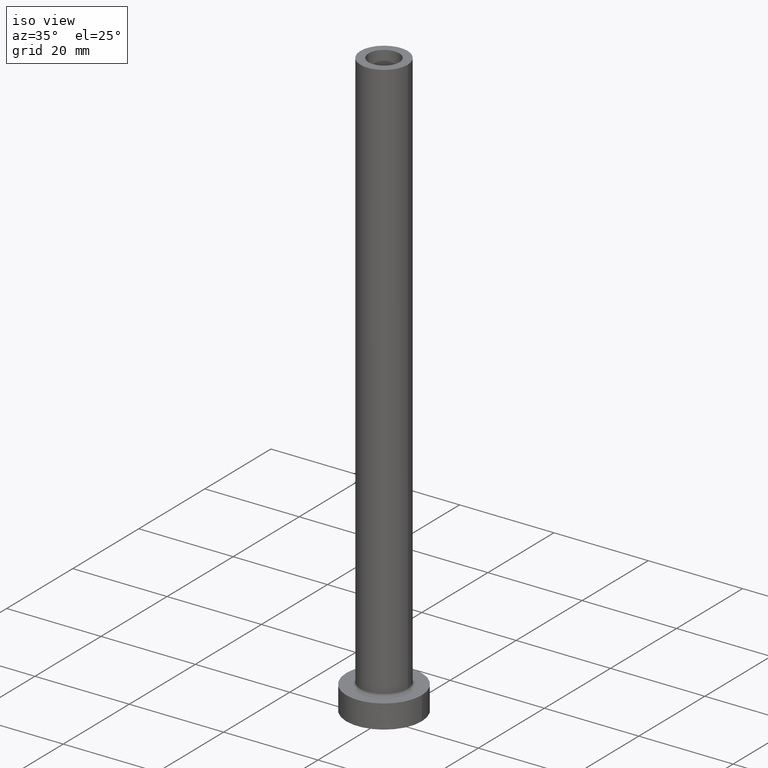
[diagram: clean part render]
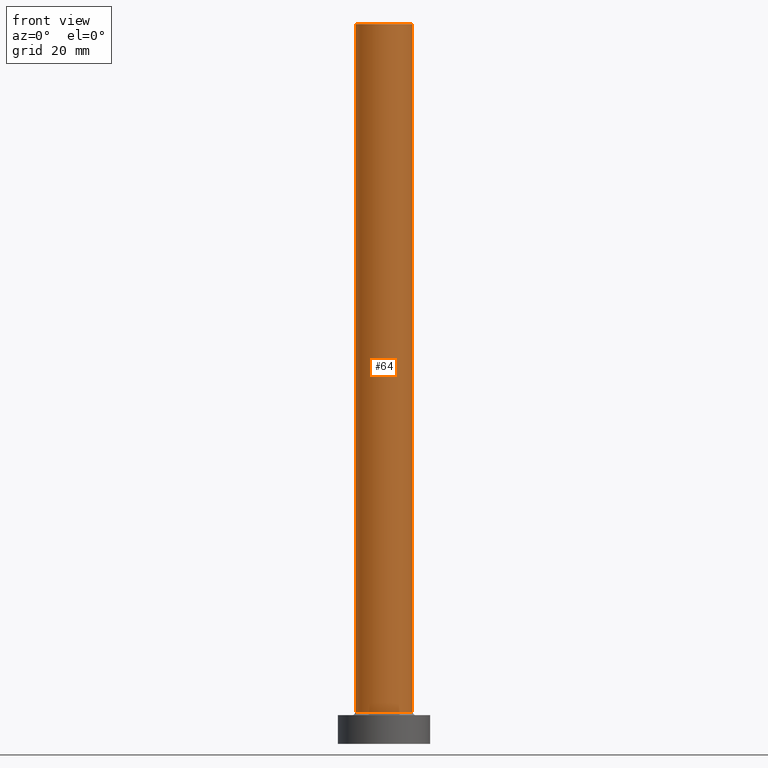
[diagram: tour spotlight — one face highlighted and labeled with its STEP entity id]
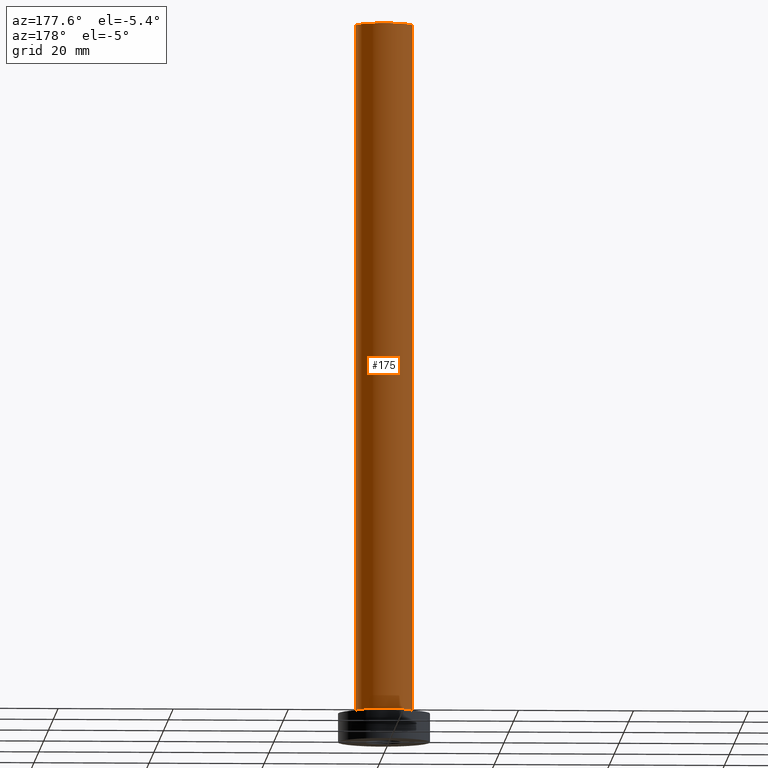
[diagram: tour spotlight — one face highlighted and labeled with its STEP entity id]
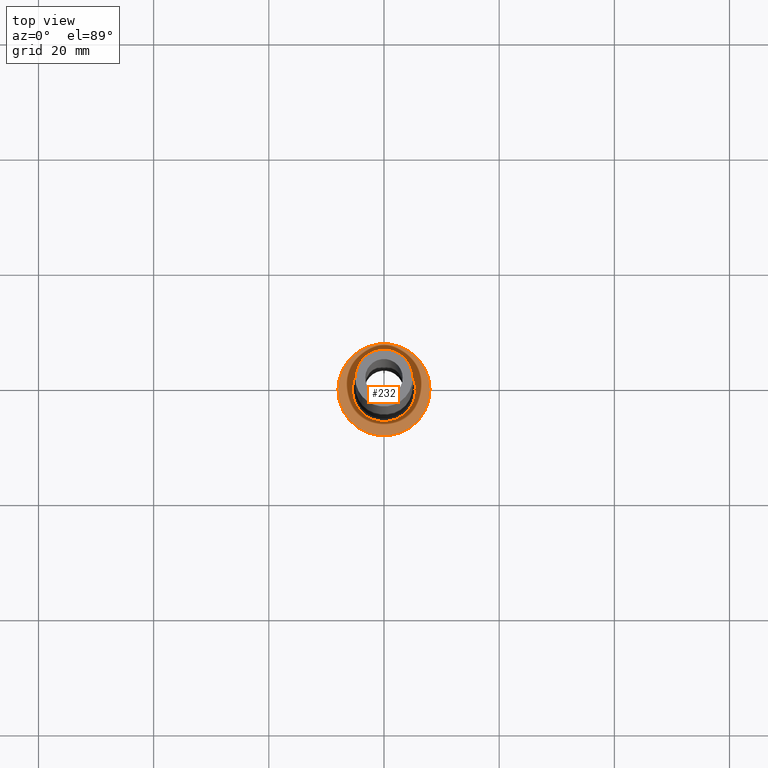
[diagram: tour spotlight — one face highlighted and labeled with its STEP entity id]
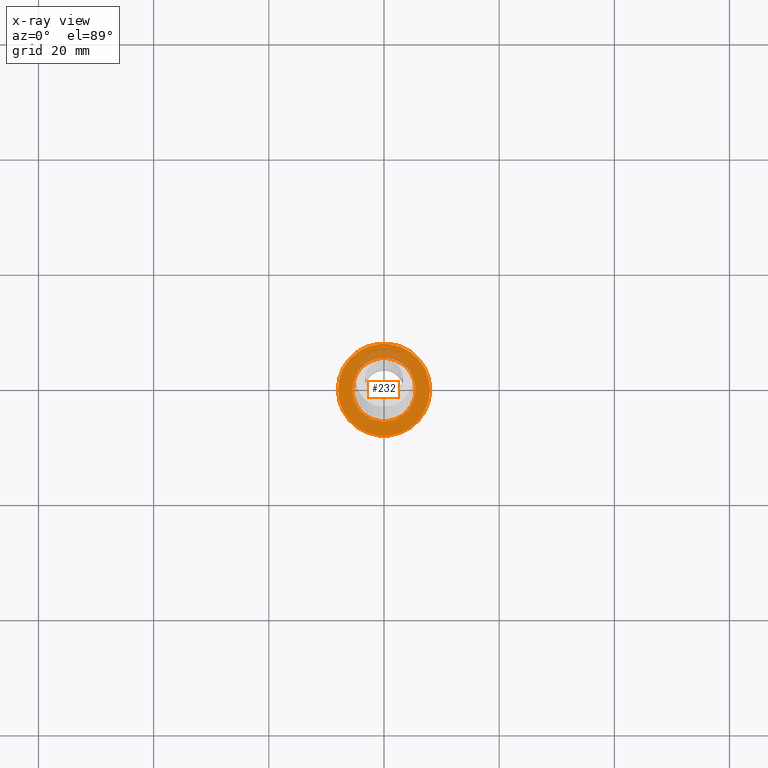
[diagram: x-ray of the same camera — body ghosted, this tour face saturated]
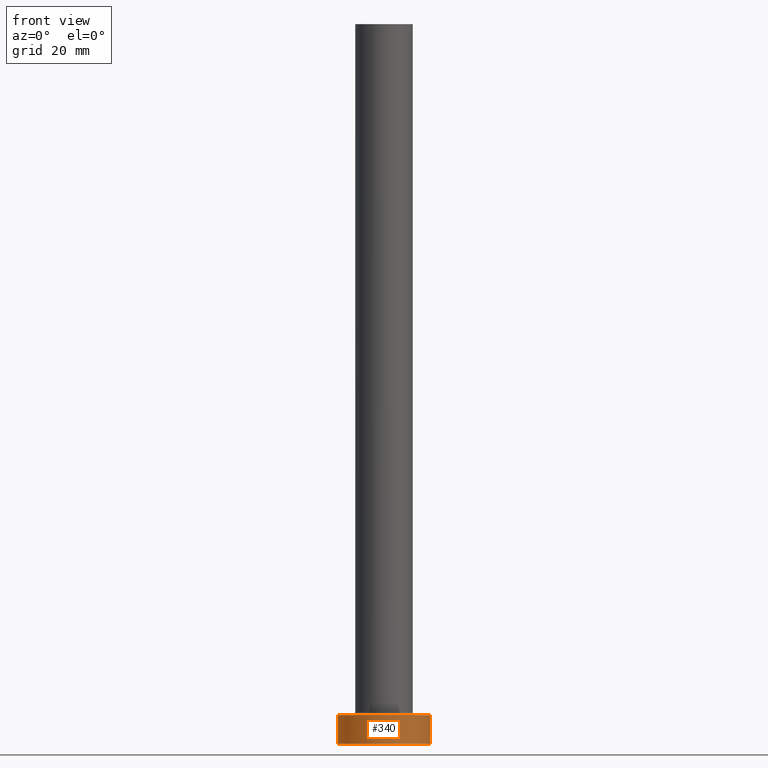
[diagram: tour spotlight — one face highlighted and labeled with its STEP entity id]
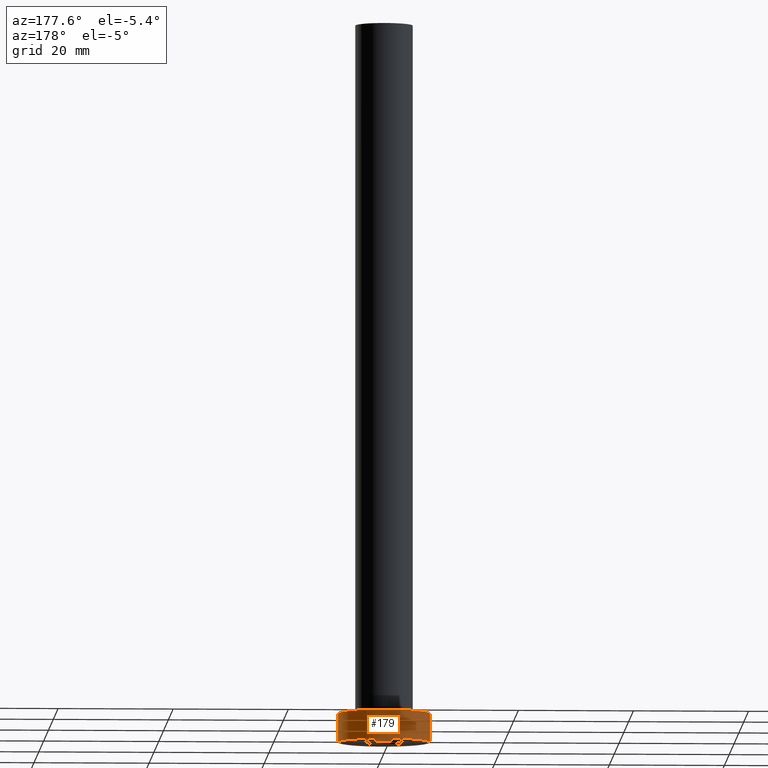
[diagram: tour spotlight — one face highlighted and labeled with its STEP entity id]
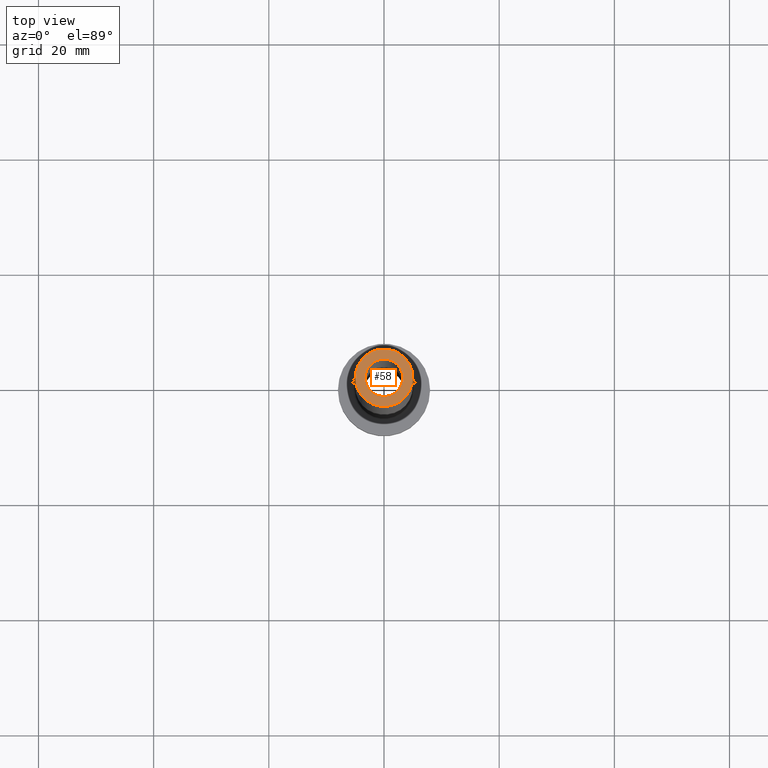
[diagram: tour spotlight — one face highlighted and labeled with its STEP entity id]
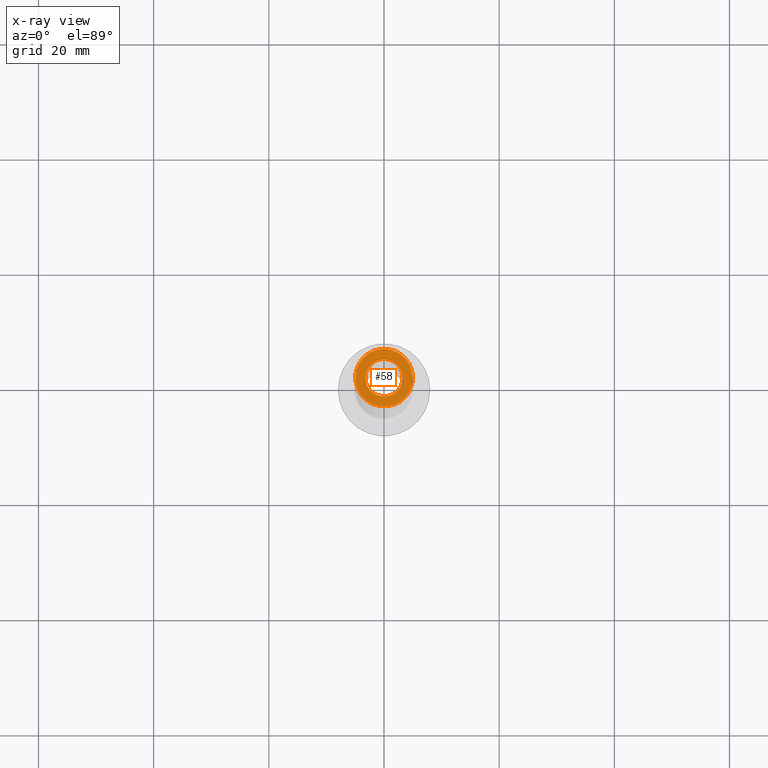
[diagram: x-ray of the same camera — body ghosted, this tour face saturated]
A machine part: a face-by-face anatomy tour. The part has 14 B-rep faces; the first image is the clean iso view, then the 6 largest visible faces are spotlighted one at a time (largest first), each with its STEP entity span.

Face 1 — front view, entity #64. In plain terms, the highlighted cylindrical surface (edge-blend (fillet) strip) has radius 5 mm, axis along (-0, -0, -1).
Definition (entity closure, byte-faithful):
#8 = DIRECTION ( 'NONE',  ( -0.000000000000000000, -0.000000000000000000, -1.000000000000000000 ) ) ;
#27 = VECTOR ( 'NONE', #8, 1000.000000000000000 ) ;
#37 = ORIENTED_EDGE ( 'NONE', *, *, #392, .T. ) ;
#64 = ADVANCED_FACE ( 'NONE', ( #229 ), #333, .T. ) ;
#85 = DIRECTION ( 'NONE',  ( -0.000000000000000000, -0.000000000000000000, -1.000000000000000000 ) ) ;
#118 = AXIS2_PLACEMENT_3D ( 'NONE', #198, #253, #308 ) ;
#122 = CARTESIAN_POINT ( 'NONE',  ( 5.000000000000000000, 6.123233995736766282E-16, 125.0000000000000000 ) ) ;
#167 = EDGE_CURVE ( 'NONE', #182, #314, #377, .T. ) ;
#168 = VERTEX_POINT ( 'NONE', #268 ) ;
#180 = CARTESIAN_POINT ( 'NONE',  ( 0.000000000000000000, 0.000000000000000000, 125.0000000000000000 ) ) ;
#182 = VERTEX_POINT ( 'NONE', #341 ) ;
#198 = CARTESIAN_POINT ( 'NONE',  ( 0.000000000000000000, 0.000000000000000000, 5.500000000000005329 ) ) ;
#229 = FACE_OUTER_BOUND ( 'NONE', #402, .T. ) ;
#251 = DIRECTION ( 'NONE',  ( 1.000000000000000000, 0.000000000000000000, 0.000000000000000000 ) ) ;
#253 = DIRECTION ( 'NONE',  ( 0.000000000000000000, 0.000000000000000000, 1.000000000000000000 ) ) ;
#256 = CIRCLE ( 'NONE', #118, 5.000000000000000000 ) ;
#261 = DIRECTION ( 'NONE',  ( -1.000000000000000000, 0.000000000000000000, 0.000000000000000000 ) ) ;
#268 = CARTESIAN_POINT ( 'NONE',  ( 5.000000000000000000, 6.123233995736766282E-16, 5.500000000000005329 ) ) ;
#274 = AXIS2_PLACEMENT_3D ( 'NONE', #180, #437, #251 ) ;
#276 = EDGE_CURVE ( 'NONE', #182, #280, #360, .T. ) ;
#280 = VERTEX_POINT ( 'NONE', #290 ) ;
#286 = CARTESIAN_POINT ( 'NONE',  ( -5.000000000000000000, 0.000000000000000000, 5.500000000000005329 ) ) ;
#290 = CARTESIAN_POINT ( 'NONE',  ( 5.000000000000000000, 6.123233995736766282E-16, 125.0000000000000000 ) ) ;
#301 = VECTOR ( 'NONE', #85, 1000.000000000000000 ) ;
#308 = DIRECTION ( 'NONE',  ( 1.000000000000000000, 0.000000000000000000, 0.000000000000000000 ) ) ;
#309 = CARTESIAN_POINT ( 'NONE',  ( -5.000000000000000000, 0.000000000000000000, 125.0000000000000000 ) ) ;
#314 = VERTEX_POINT ( 'NONE', #286 ) ;
#333 = CYLINDRICAL_SURFACE ( 'NONE', #399, 5.000000000000000000 ) ;
#341 = CARTESIAN_POINT ( 'NONE',  ( -5.000000000000000000, 0.000000000000000000, 125.0000000000000000 ) ) ;
#348 = ORIENTED_EDGE ( 'NONE', *, *, #167, .T. ) ;
#350 = EDGE_CURVE ( 'NONE', #280, #168, #414, .T. ) ;
#360 = CIRCLE ( 'NONE', #274, 5.000000000000000000 ) ;
#371 = ORIENTED_EDGE ( 'NONE', *, *, #350, .F. ) ;
#377 = LINE ( 'NONE', #309, #301 ) ;
#381 = DIRECTION ( 'NONE',  ( -0.000000000000000000, -0.000000000000000000, -1.000000000000000000 ) ) ;
#384 = CARTESIAN_POINT ( 'NONE',  ( 0.000000000000000000, 0.000000000000000000, 125.0000000000000000 ) ) ;
#392 = EDGE_CURVE ( 'NONE', #314, #168, #256, .T. ) ;
#399 = AXIS2_PLACEMENT_3D ( 'NONE', #384, #381, #261 ) ;
#402 = EDGE_LOOP ( 'NONE', ( #371, #433, #348, #37 ) ) ;
#414 = LINE ( 'NONE', #122, #27 ) ;
#433 = ORIENTED_EDGE ( 'NONE', *, *, #276, .F. ) ;
#437 = DIRECTION ( 'NONE',  ( 0.000000000000000000, 0.000000000000000000, 1.000000000000000000 ) ) ;

Face 2 — auxiliary view, entity #175. In plain terms, the highlighted cylindrical surface (edge-blend (fillet) strip) has radius 5 mm, axis along (-0, -0, -1).
Definition (entity closure, byte-faithful):
#2 = ORIENTED_EDGE ( 'NONE', *, *, #31, .F. ) ;
#3 = DIRECTION ( 'NONE',  ( 1.000000000000000000, 0.000000000000000000, 0.000000000000000000 ) ) ;
#5 = ORIENTED_EDGE ( 'NONE', *, *, #167, .F. ) ;
#8 = DIRECTION ( 'NONE',  ( -0.000000000000000000, -0.000000000000000000, -1.000000000000000000 ) ) ;
#9 = FACE_OUTER_BOUND ( 'NONE', #137, .T. ) ;
#27 = VECTOR ( 'NONE', #8, 1000.000000000000000 ) ;
#31 = EDGE_CURVE ( 'NONE', #280, #182, #247, .T. ) ;
#85 = DIRECTION ( 'NONE',  ( -0.000000000000000000, -0.000000000000000000, -1.000000000000000000 ) ) ;
#90 = CYLINDRICAL_SURFACE ( 'NONE', #230, 5.000000000000000000 ) ;
#122 = CARTESIAN_POINT ( 'NONE',  ( 5.000000000000000000, 6.123233995736766282E-16, 125.0000000000000000 ) ) ;
#124 = AXIS2_PLACEMENT_3D ( 'NONE', #436, #323, #3 ) ;
#137 = EDGE_LOOP ( 'NONE', ( #2, #145, #248, #5 ) ) ;
#145 = ORIENTED_EDGE ( 'NONE', *, *, #350, .T. ) ;
#154 = CARTESIAN_POINT ( 'NONE',  ( 0.000000000000000000, 0.000000000000000000, 125.0000000000000000 ) ) ;
#156 = DIRECTION ( 'NONE',  ( -1.000000000000000000, 0.000000000000000000, 0.000000000000000000 ) ) ;
#167 = EDGE_CURVE ( 'NONE', #182, #314, #377, .T. ) ;
#168 = VERTEX_POINT ( 'NONE', #268 ) ;
#175 = ADVANCED_FACE ( 'NONE', ( #9 ), #90, .T. ) ;
#182 = VERTEX_POINT ( 'NONE', #341 ) ;
#230 = AXIS2_PLACEMENT_3D ( 'NONE', #154, #307, #156 ) ;
#247 = CIRCLE ( 'NONE', #124, 5.000000000000000000 ) ;
#248 = ORIENTED_EDGE ( 'NONE', *, *, #365, .T. ) ;
#263 = CARTESIAN_POINT ( 'NONE',  ( 0.000000000000000000, 0.000000000000000000, 5.500000000000005329 ) ) ;
#268 = CARTESIAN_POINT ( 'NONE',  ( 5.000000000000000000, 6.123233995736766282E-16, 5.500000000000005329 ) ) ;
#280 = VERTEX_POINT ( 'NONE', #290 ) ;
#286 = CARTESIAN_POINT ( 'NONE',  ( -5.000000000000000000, 0.000000000000000000, 5.500000000000005329 ) ) ;
#290 = CARTESIAN_POINT ( 'NONE',  ( 5.000000000000000000, 6.123233995736766282E-16, 125.0000000000000000 ) ) ;
#301 = VECTOR ( 'NONE', #85, 1000.000000000000000 ) ;
#307 = DIRECTION ( 'NONE',  ( -0.000000000000000000, -0.000000000000000000, -1.000000000000000000 ) ) ;
#309 = CARTESIAN_POINT ( 'NONE',  ( -5.000000000000000000, 0.000000000000000000, 125.0000000000000000 ) ) ;
#314 = VERTEX_POINT ( 'NONE', #286 ) ;
#320 = CIRCLE ( 'NONE', #389, 5.000000000000000000 ) ;
#323 = DIRECTION ( 'NONE',  ( 0.000000000000000000, 0.000000000000000000, 1.000000000000000000 ) ) ;
#341 = CARTESIAN_POINT ( 'NONE',  ( -5.000000000000000000, 0.000000000000000000, 125.0000000000000000 ) ) ;
#350 = EDGE_CURVE ( 'NONE', #280, #168, #414, .T. ) ;
#365 = EDGE_CURVE ( 'NONE', #168, #314, #320, .T. ) ;
#375 = DIRECTION ( 'NONE',  ( 1.000000000000000000, 0.000000000000000000, 0.000000000000000000 ) ) ;
#377 = LINE ( 'NONE', #309, #301 ) ;
#389 = AXIS2_PLACEMENT_3D ( 'NONE', #263, #441, #375 ) ;
#414 = LINE ( 'NONE', #122, #27 ) ;
#436 = CARTESIAN_POINT ( 'NONE',  ( 0.000000000000000000, 0.000000000000000000, 125.0000000000000000 ) ) ;
#441 = DIRECTION ( 'NONE',  ( 0.000000000000000000, 0.000000000000000000, 1.000000000000000000 ) ) ;

Face 3 — top view, entity #232. An x-ray twin of the same camera follows (body ghosted, this face saturated) — the face is partly hidden behind the body. In plain terms, the highlighted planar face has unit normal (0, 0, 1).
Definition (entity closure, byte-faithful):
#6 = VERTEX_POINT ( 'NONE', #366 ) ;
#54 = CIRCLE ( 'NONE', #202, 5.500000000000000000 ) ;
#56 = CARTESIAN_POINT ( 'NONE',  ( 0.000000000000000000, 0.000000000000000000, 5.000000000000000000 ) ) ;
#92 = CIRCLE ( 'NONE', #310, 5.500000000000000000 ) ;
#95 = CARTESIAN_POINT ( 'NONE',  ( 0.000000000000000000, 0.000000000000000000, 5.000000000000000000 ) ) ;
#112 = VERTEX_POINT ( 'NONE', #304 ) ;
#127 = CIRCLE ( 'NONE', #345, 8.000000000000000000 ) ;
#141 = AXIS2_PLACEMENT_3D ( 'NONE', #56, #205, #331 ) ;
#146 = EDGE_CURVE ( 'NONE', #328, #6, #92, .T. ) ;
#184 = CARTESIAN_POINT ( 'NONE',  ( 0.000000000000000000, 0.000000000000000000, 5.000000000000000000 ) ) ;
#188 = DIRECTION ( 'NONE',  ( -0.000000000000000000, -0.000000000000000000, -1.000000000000000000 ) ) ;
#202 = AXIS2_PLACEMENT_3D ( 'NONE', #361, #188, #434 ) ;
#205 = DIRECTION ( 'NONE',  ( 0.000000000000000000, 0.000000000000000000, 1.000000000000000000 ) ) ;
#215 = EDGE_LOOP ( 'NONE', ( #355, #289 ) ) ;
#220 = DIRECTION ( 'NONE',  ( 0.000000000000000000, 0.000000000000000000, 1.000000000000000000 ) ) ;
#227 = DIRECTION ( 'NONE',  ( 1.000000000000000000, 0.000000000000000000, 0.000000000000000000 ) ) ;
#232 = ADVANCED_FACE ( 'NONE', ( #318, #358 ), #293, .T. ) ;
#249 = DIRECTION ( 'NONE',  ( 1.000000000000000000, 0.000000000000000000, -0.000000000000000000 ) ) ;
#252 = VERTEX_POINT ( 'NONE', #401 ) ;
#258 = CARTESIAN_POINT ( 'NONE',  ( 0.000000000000000000, 0.000000000000000000, 5.000000000000000000 ) ) ;
#279 = EDGE_CURVE ( 'NONE', #6, #328, #54, .T. ) ;
#289 = ORIENTED_EDGE ( 'NONE', *, *, #364, .T. ) ;
#293 = PLANE ( 'NONE',  #315 ) ;
#304 = CARTESIAN_POINT ( 'NONE',  ( -8.000000000000000000, 0.000000000000000000, 5.000000000000000000 ) ) ;
#310 = AXIS2_PLACEMENT_3D ( 'NONE', #95, #336, #339 ) ;
#315 = AXIS2_PLACEMENT_3D ( 'NONE', #184, #220, #249 ) ;
#318 = FACE_BOUND ( 'NONE', #398, .T. ) ;
#328 = VERTEX_POINT ( 'NONE', #397 ) ;
#331 = DIRECTION ( 'NONE',  ( 1.000000000000000000, 0.000000000000000000, 0.000000000000000000 ) ) ;
#336 = DIRECTION ( 'NONE',  ( -0.000000000000000000, -0.000000000000000000, -1.000000000000000000 ) ) ;
#339 = DIRECTION ( 'NONE',  ( 1.000000000000000000, 0.000000000000000000, 0.000000000000000000 ) ) ;
#345 = AXIS2_PLACEMENT_3D ( 'NONE', #258, #443, #227 ) ;
#353 = CIRCLE ( 'NONE', #141, 8.000000000000000000 ) ;
#355 = ORIENTED_EDGE ( 'NONE', *, *, #403, .T. ) ;
#358 = FACE_OUTER_BOUND ( 'NONE', #215, .T. ) ;
#361 = CARTESIAN_POINT ( 'NONE',  ( 0.000000000000000000, 0.000000000000000000, 5.000000000000000000 ) ) ;
#364 = EDGE_CURVE ( 'NONE', #252, #112, #127, .T. ) ;
#366 = CARTESIAN_POINT ( 'NONE',  ( 5.500000000000000000, 0.000000000000000000, 5.000000000000002665 ) ) ;
#396 = ORIENTED_EDGE ( 'NONE', *, *, #279, .T. ) ;
#397 = CARTESIAN_POINT ( 'NONE',  ( -5.500000000000000000, 6.735557395310442023E-16, 5.000000000000002665 ) ) ;
#398 = EDGE_LOOP ( 'NONE', ( #396, #427 ) ) ;
#401 = CARTESIAN_POINT ( 'NONE',  ( 8.000000000000000000, 9.797174393178825657E-16, 5.000000000000000000 ) ) ;
#403 = EDGE_CURVE ( 'NONE', #112, #252, #353, .T. ) ;
#427 = ORIENTED_EDGE ( 'NONE', *, *, #146, .T. ) ;
#434 = DIRECTION ( 'NONE',  ( 1.000000000000000000, 0.000000000000000000, 0.000000000000000000 ) ) ;
#443 = DIRECTION ( 'NONE',  ( 0.000000000000000000, 0.000000000000000000, 1.000000000000000000 ) ) ;

Face 4 — front view, entity #340. In plain terms, the highlighted cylindrical surface (partial cylindrical patch) has radius 8 mm, axis along (-0, -0, -1).
Definition (entity closure, byte-faithful):
#1 = CYLINDRICAL_SURFACE ( 'NONE', #311, 8.000000000000000000 ) ;
#12 = DIRECTION ( 'NONE',  ( 0.000000000000000000, 0.000000000000000000, 1.000000000000000000 ) ) ;
#16 = LINE ( 'NONE', #300, #65 ) ;
#19 = DIRECTION ( 'NONE',  ( -0.000000000000000000, -0.000000000000000000, -1.000000000000000000 ) ) ;
#36 = FACE_OUTER_BOUND ( 'NONE', #140, .T. ) ;
#52 = CARTESIAN_POINT ( 'NONE',  ( 8.000000000000000000, 9.797174393178825657E-16, 0.000000000000000000 ) ) ;
#53 = DIRECTION ( 'NONE',  ( -0.000000000000000000, -0.000000000000000000, -1.000000000000000000 ) ) ;
#56 = CARTESIAN_POINT ( 'NONE',  ( 0.000000000000000000, 0.000000000000000000, 5.000000000000000000 ) ) ;
#65 = VECTOR ( 'NONE', #19, 1000.000000000000000 ) ;
#87 = EDGE_CURVE ( 'NONE', #112, #458, #264, .T. ) ;
#89 = DIRECTION ( 'NONE',  ( 1.000000000000000000, 0.000000000000000000, 0.000000000000000000 ) ) ;
#112 = VERTEX_POINT ( 'NONE', #304 ) ;
#140 = EDGE_LOOP ( 'NONE', ( #281, #189, #400, #270 ) ) ;
#141 = AXIS2_PLACEMENT_3D ( 'NONE', #56, #205, #331 ) ;
#144 = DIRECTION ( 'NONE',  ( -0.000000000000000000, -0.000000000000000000, -1.000000000000000000 ) ) ;
#148 = EDGE_CURVE ( 'NONE', #252, #431, #16, .T. ) ;
#189 = ORIENTED_EDGE ( 'NONE', *, *, #403, .F. ) ;
#205 = DIRECTION ( 'NONE',  ( 0.000000000000000000, 0.000000000000000000, 1.000000000000000000 ) ) ;
#224 = CIRCLE ( 'NONE', #446, 8.000000000000000000 ) ;
#252 = VERTEX_POINT ( 'NONE', #401 ) ;
#264 = LINE ( 'NONE', #385, #265 ) ;
#265 = VECTOR ( 'NONE', #53, 1000.000000000000000 ) ;
#270 = ORIENTED_EDGE ( 'NONE', *, *, #422, .T. ) ;
#281 = ORIENTED_EDGE ( 'NONE', *, *, #148, .F. ) ;
#288 = DIRECTION ( 'NONE',  ( -1.000000000000000000, 0.000000000000000000, 0.000000000000000000 ) ) ;
#300 = CARTESIAN_POINT ( 'NONE',  ( 8.000000000000000000, 9.797174393178825657E-16, 5.000000000000000000 ) ) ;
#304 = CARTESIAN_POINT ( 'NONE',  ( -8.000000000000000000, 0.000000000000000000, 5.000000000000000000 ) ) ;
#311 = AXIS2_PLACEMENT_3D ( 'NONE', #321, #144, #288 ) ;
#321 = CARTESIAN_POINT ( 'NONE',  ( 0.000000000000000000, 0.000000000000000000, 5.000000000000000000 ) ) ;
#331 = DIRECTION ( 'NONE',  ( 1.000000000000000000, 0.000000000000000000, 0.000000000000000000 ) ) ;
#335 = CARTESIAN_POINT ( 'NONE',  ( -8.000000000000000000, 0.000000000000000000, 0.000000000000000000 ) ) ;
#340 = ADVANCED_FACE ( 'NONE', ( #36 ), #1, .T. ) ;
#353 = CIRCLE ( 'NONE', #141, 8.000000000000000000 ) ;
#385 = CARTESIAN_POINT ( 'NONE',  ( -8.000000000000000000, 0.000000000000000000, 5.000000000000000000 ) ) ;
#400 = ORIENTED_EDGE ( 'NONE', *, *, #87, .T. ) ;
#401 = CARTESIAN_POINT ( 'NONE',  ( 8.000000000000000000, 9.797174393178825657E-16, 5.000000000000000000 ) ) ;
#403 = EDGE_CURVE ( 'NONE', #112, #252, #353, .T. ) ;
#422 = EDGE_CURVE ( 'NONE', #458, #431, #224, .T. ) ;
#431 = VERTEX_POINT ( 'NONE', #52 ) ;
#446 = AXIS2_PLACEMENT_3D ( 'NONE', #449, #12, #89 ) ;
#449 = CARTESIAN_POINT ( 'NONE',  ( 0.000000000000000000, 0.000000000000000000, 0.000000000000000000 ) ) ;
#458 = VERTEX_POINT ( 'NONE', #335 ) ;

Face 5 — auxiliary view, entity #179. In plain terms, the highlighted cylindrical surface (partial cylindrical patch) has radius 8 mm, axis along (-0, -0, -1).
Definition (entity closure, byte-faithful):
#16 = LINE ( 'NONE', #300, #65 ) ;
#19 = DIRECTION ( 'NONE',  ( -0.000000000000000000, -0.000000000000000000, -1.000000000000000000 ) ) ;
#52 = CARTESIAN_POINT ( 'NONE',  ( 8.000000000000000000, 9.797174393178825657E-16, 0.000000000000000000 ) ) ;
#53 = DIRECTION ( 'NONE',  ( -0.000000000000000000, -0.000000000000000000, -1.000000000000000000 ) ) ;
#65 = VECTOR ( 'NONE', #19, 1000.000000000000000 ) ;
#87 = EDGE_CURVE ( 'NONE', #112, #458, #264, .T. ) ;
#98 = ORIENTED_EDGE ( 'NONE', *, *, #87, .F. ) ;
#105 = ORIENTED_EDGE ( 'NONE', *, *, #197, .T. ) ;
#112 = VERTEX_POINT ( 'NONE', #304 ) ;
#119 = CYLINDRICAL_SURFACE ( 'NONE', #391, 8.000000000000000000 ) ;
#123 = DIRECTION ( 'NONE',  ( -0.000000000000000000, -0.000000000000000000, -1.000000000000000000 ) ) ;
#127 = CIRCLE ( 'NONE', #345, 8.000000000000000000 ) ;
#129 = CARTESIAN_POINT ( 'NONE',  ( 0.000000000000000000, 0.000000000000000000, 0.000000000000000000 ) ) ;
#132 = DIRECTION ( 'NONE',  ( 1.000000000000000000, 0.000000000000000000, 0.000000000000000000 ) ) ;
#135 = DIRECTION ( 'NONE',  ( 0.000000000000000000, 0.000000000000000000, 1.000000000000000000 ) ) ;
#148 = EDGE_CURVE ( 'NONE', #252, #431, #16, .T. ) ;
#178 = EDGE_LOOP ( 'NONE', ( #368, #363, #105, #98 ) ) ;
#179 = ADVANCED_FACE ( 'NONE', ( #448 ), #119, .T. ) ;
#197 = EDGE_CURVE ( 'NONE', #431, #458, #240, .T. ) ;
#200 = DIRECTION ( 'NONE',  ( -1.000000000000000000, 0.000000000000000000, 0.000000000000000000 ) ) ;
#227 = DIRECTION ( 'NONE',  ( 1.000000000000000000, 0.000000000000000000, 0.000000000000000000 ) ) ;
#240 = CIRCLE ( 'NONE', #282, 8.000000000000000000 ) ;
#252 = VERTEX_POINT ( 'NONE', #401 ) ;
#258 = CARTESIAN_POINT ( 'NONE',  ( 0.000000000000000000, 0.000000000000000000, 5.000000000000000000 ) ) ;
#259 = CARTESIAN_POINT ( 'NONE',  ( 0.000000000000000000, 0.000000000000000000, 5.000000000000000000 ) ) ;
#264 = LINE ( 'NONE', #385, #265 ) ;
#265 = VECTOR ( 'NONE', #53, 1000.000000000000000 ) ;
#282 = AXIS2_PLACEMENT_3D ( 'NONE', #129, #135, #132 ) ;
#300 = CARTESIAN_POINT ( 'NONE',  ( 8.000000000000000000, 9.797174393178825657E-16, 5.000000000000000000 ) ) ;
#304 = CARTESIAN_POINT ( 'NONE',  ( -8.000000000000000000, 0.000000000000000000, 5.000000000000000000 ) ) ;
#335 = CARTESIAN_POINT ( 'NONE',  ( -8.000000000000000000, 0.000000000000000000, 0.000000000000000000 ) ) ;
#345 = AXIS2_PLACEMENT_3D ( 'NONE', #258, #443, #227 ) ;
#363 = ORIENTED_EDGE ( 'NONE', *, *, #148, .T. ) ;
#364 = EDGE_CURVE ( 'NONE', #252, #112, #127, .T. ) ;
#368 = ORIENTED_EDGE ( 'NONE', *, *, #364, .F. ) ;
#385 = CARTESIAN_POINT ( 'NONE',  ( -8.000000000000000000, 0.000000000000000000, 5.000000000000000000 ) ) ;
#391 = AXIS2_PLACEMENT_3D ( 'NONE', #259, #123, #200 ) ;
#401 = CARTESIAN_POINT ( 'NONE',  ( 8.000000000000000000, 9.797174393178825657E-16, 5.000000000000000000 ) ) ;
#431 = VERTEX_POINT ( 'NONE', #52 ) ;
#443 = DIRECTION ( 'NONE',  ( 0.000000000000000000, 0.000000000000000000, 1.000000000000000000 ) ) ;
#448 = FACE_OUTER_BOUND ( 'NONE', #178, .T. ) ;
#458 = VERTEX_POINT ( 'NONE', #335 ) ;

Face 6 — top view, entity #58. An x-ray twin of the same camera follows (body ghosted, this face saturated) — the face is partly hidden behind the body. In plain terms, the highlighted planar face has unit normal (0, 0, 1).
Definition (entity closure, byte-faithful):
#3 = DIRECTION ( 'NONE',  ( 1.000000000000000000, 0.000000000000000000, 0.000000000000000000 ) ) ;
#22 = CARTESIAN_POINT ( 'NONE',  ( 3.250000000000000444, 3.980102097228897245E-16, 125.0000000000000000 ) ) ;
#25 = CIRCLE ( 'NONE', #51, 3.250000000000000444 ) ;
#31 = EDGE_CURVE ( 'NONE', #280, #182, #247, .T. ) ;
#46 = DIRECTION ( 'NONE',  ( 1.000000000000000000, 0.000000000000000000, -0.000000000000000000 ) ) ;
#51 = AXIS2_PLACEMENT_3D ( 'NONE', #114, #228, #413 ) ;
#58 = ADVANCED_FACE ( 'NONE', ( #233, #298 ), #419, .T. ) ;
#59 = CARTESIAN_POINT ( 'NONE',  ( 0.000000000000000000, 0.000000000000000000, 125.0000000000000000 ) ) ;
#76 = ORIENTED_EDGE ( 'NONE', *, *, #31, .T. ) ;
#86 = EDGE_CURVE ( 'NONE', #187, #212, #25, .T. ) ;
#100 = CARTESIAN_POINT ( 'NONE',  ( 0.000000000000000000, 0.000000000000000000, 125.0000000000000000 ) ) ;
#114 = CARTESIAN_POINT ( 'NONE',  ( 0.000000000000000000, 0.000000000000000000, 125.0000000000000000 ) ) ;
#120 = DIRECTION ( 'NONE',  ( 0.000000000000000000, 0.000000000000000000, 1.000000000000000000 ) ) ;
#124 = AXIS2_PLACEMENT_3D ( 'NONE', #436, #323, #3 ) ;
#173 = DIRECTION ( 'NONE',  ( 0.000000000000000000, 0.000000000000000000, 1.000000000000000000 ) ) ;
#180 = CARTESIAN_POINT ( 'NONE',  ( 0.000000000000000000, 0.000000000000000000, 125.0000000000000000 ) ) ;
#182 = VERTEX_POINT ( 'NONE', #341 ) ;
#187 = VERTEX_POINT ( 'NONE', #22 ) ;
#193 = ORIENTED_EDGE ( 'NONE', *, *, #276, .T. ) ;
#211 = EDGE_CURVE ( 'NONE', #212, #187, #342, .T. ) ;
#212 = VERTEX_POINT ( 'NONE', #277 ) ;
#223 = EDGE_LOOP ( 'NONE', ( #278, #347 ) ) ;
#228 = DIRECTION ( 'NONE',  ( 0.000000000000000000, 0.000000000000000000, 1.000000000000000000 ) ) ;
#233 = FACE_BOUND ( 'NONE', #223, .T. ) ;
#243 = EDGE_LOOP ( 'NONE', ( #193, #76 ) ) ;
#247 = CIRCLE ( 'NONE', #124, 5.000000000000000000 ) ;
#251 = DIRECTION ( 'NONE',  ( 1.000000000000000000, 0.000000000000000000, 0.000000000000000000 ) ) ;
#273 = AXIS2_PLACEMENT_3D ( 'NONE', #59, #120, #46 ) ;
#274 = AXIS2_PLACEMENT_3D ( 'NONE', #180, #437, #251 ) ;
#276 = EDGE_CURVE ( 'NONE', #182, #280, #360, .T. ) ;
#277 = CARTESIAN_POINT ( 'NONE',  ( -3.250000000000000444, 0.000000000000000000, 125.0000000000000000 ) ) ;
#278 = ORIENTED_EDGE ( 'NONE', *, *, #211, .F. ) ;
#280 = VERTEX_POINT ( 'NONE', #290 ) ;
#290 = CARTESIAN_POINT ( 'NONE',  ( 5.000000000000000000, 6.123233995736766282E-16, 125.0000000000000000 ) ) ;
#298 = FACE_OUTER_BOUND ( 'NONE', #243, .T. ) ;
#323 = DIRECTION ( 'NONE',  ( 0.000000000000000000, 0.000000000000000000, 1.000000000000000000 ) ) ;
#341 = CARTESIAN_POINT ( 'NONE',  ( -5.000000000000000000, 0.000000000000000000, 125.0000000000000000 ) ) ;
#342 = CIRCLE ( 'NONE', #444, 3.250000000000000444 ) ;
#347 = ORIENTED_EDGE ( 'NONE', *, *, #86, .F. ) ;
#360 = CIRCLE ( 'NONE', #274, 5.000000000000000000 ) ;
#413 = DIRECTION ( 'NONE',  ( 1.000000000000000000, 0.000000000000000000, 0.000000000000000000 ) ) ;
#419 = PLANE ( 'NONE',  #273 ) ;
#436 = CARTESIAN_POINT ( 'NONE',  ( 0.000000000000000000, 0.000000000000000000, 125.0000000000000000 ) ) ;
#437 = DIRECTION ( 'NONE',  ( 0.000000000000000000, 0.000000000000000000, 1.000000000000000000 ) ) ;
#444 = AXIS2_PLACEMENT_3D ( 'NONE', #100, #173, #457 ) ;
#457 = DIRECTION ( 'NONE',  ( 1.000000000000000000, 0.000000000000000000, 0.000000000000000000 ) ) ;